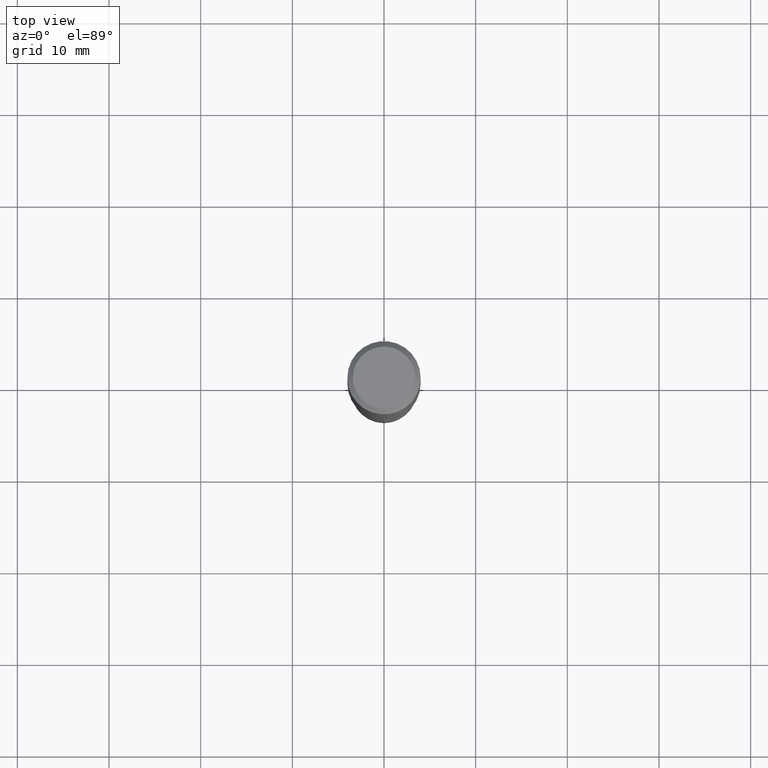
[diagram: clean part render]
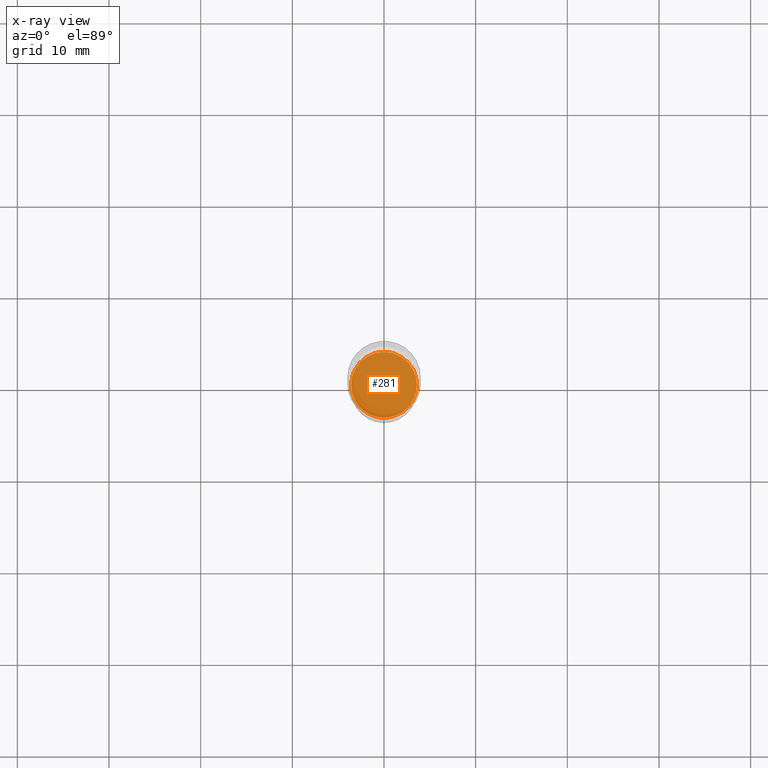
[diagram: x-ray — body ghosted, one internal face saturated and labeled with its STEP entity id]
A machine part, top view, then the same camera in x-ray: the body is ghosted and one INTERNAL B-rep face — a face not visible from any outside direction — is saturated and labeled: STEP entity #281.
In plain terms, the highlighted planar face has unit normal (-0, 0, 1).
Its self-contained STEP definition (entity closure, byte-faithful):
#1 = VERTEX_POINT ( 'NONE', #218 ) ;
#38 = ORIENTED_EDGE ( 'NONE', *, *, #122, .F. ) ;
#64 = EDGE_LOOP ( 'NONE', ( #38, #420 ) ) ;
#72 = CARTESIAN_POINT ( 'NONE',  ( 4.351711740606449758E-29, -6.213091042471375748E-15, -1.779499999999999638 ) ) ;
#113 = DIRECTION ( 'NONE',  ( -2.445468806185136597E-29, 3.491481338843145583E-15, 1.000000000000000000 ) ) ;
#122 = EDGE_CURVE ( 'NONE', #1, #483, #252, .T. ) ;
#142 = DIRECTION ( 'NONE',  ( 1.000000000000000000, -6.982962677686270655E-15, 0.000000000000000000 ) ) ;
#163 = DIRECTION ( 'NONE',  ( 1.000000000000000000, -6.982962677686265922E-15, 4.876176775795935793E-29 ) ) ;
#192 = CARTESIAN_POINT ( 'NONE',  ( 4.351711740606449758E-29, -6.213091042471375748E-15, -1.779499999999999638 ) ) ;
#194 = CARTESIAN_POINT ( 'NONE',  ( 6.754999570529109047E-29, -2.771446083373637041E-15, -1.779499999999999860 ) ) ;
#200 = DIRECTION ( 'NONE',  ( -2.438088387897960049E-29, 3.491481338843145188E-15, 1.000000000000000000 ) ) ;
#206 = CARTESIAN_POINT ( 'NONE',  ( -0.1412499999999999867, -5.206800201036123918E-15, -1.779499999999999638 ) ) ;
#218 = CARTESIAN_POINT ( 'NONE',  ( 0.1412499999999999867, -7.199434520694561552E-15, -1.779499999999999638 ) ) ;
#227 = PLANE ( 'NONE',  #377 ) ;
#252 = CIRCLE ( 'NONE', #320, 0.1412499999999999867 ) ;
#281 = ADVANCED_FACE ( 'NONE', ( #453 ), #227, .F. ) ;
#317 = EDGE_CURVE ( 'NONE', #483, #1, #348, .T. ) ;
#320 = AXIS2_PLACEMENT_3D ( 'NONE', #72, #113, #142 ) ;
#322 = AXIS2_PLACEMENT_3D ( 'NONE', #192, #343, #491 ) ;
#343 = DIRECTION ( 'NONE',  ( -2.445468806185136597E-29, 3.491481338843145583E-15, 1.000000000000000000 ) ) ;
#348 = CIRCLE ( 'NONE', #322, 0.1412499999999999867 ) ;
#377 = AXIS2_PLACEMENT_3D ( 'NONE', #194, #200, #163 ) ;
#420 = ORIENTED_EDGE ( 'NONE', *, *, #317, .F. ) ;
#453 = FACE_OUTER_BOUND ( 'NONE', #64, .T. ) ;
#483 = VERTEX_POINT ( 'NONE', #206 ) ;
#491 = DIRECTION ( 'NONE',  ( 1.000000000000000000, -6.982962677686270655E-15, 0.000000000000000000 ) ) ;